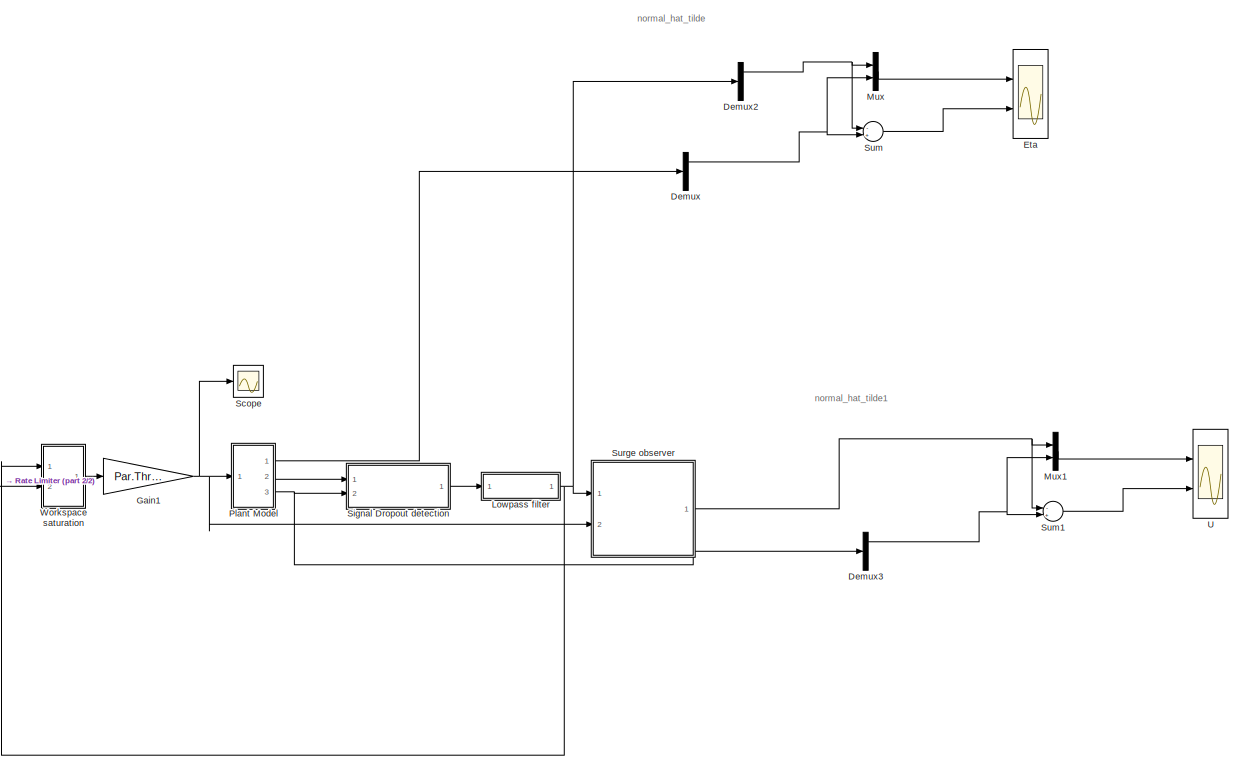
[diagram: root canvas - part 1/2, most of the canvas]
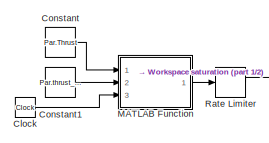
[diagram: root canvas - part 2/2, middle left region]
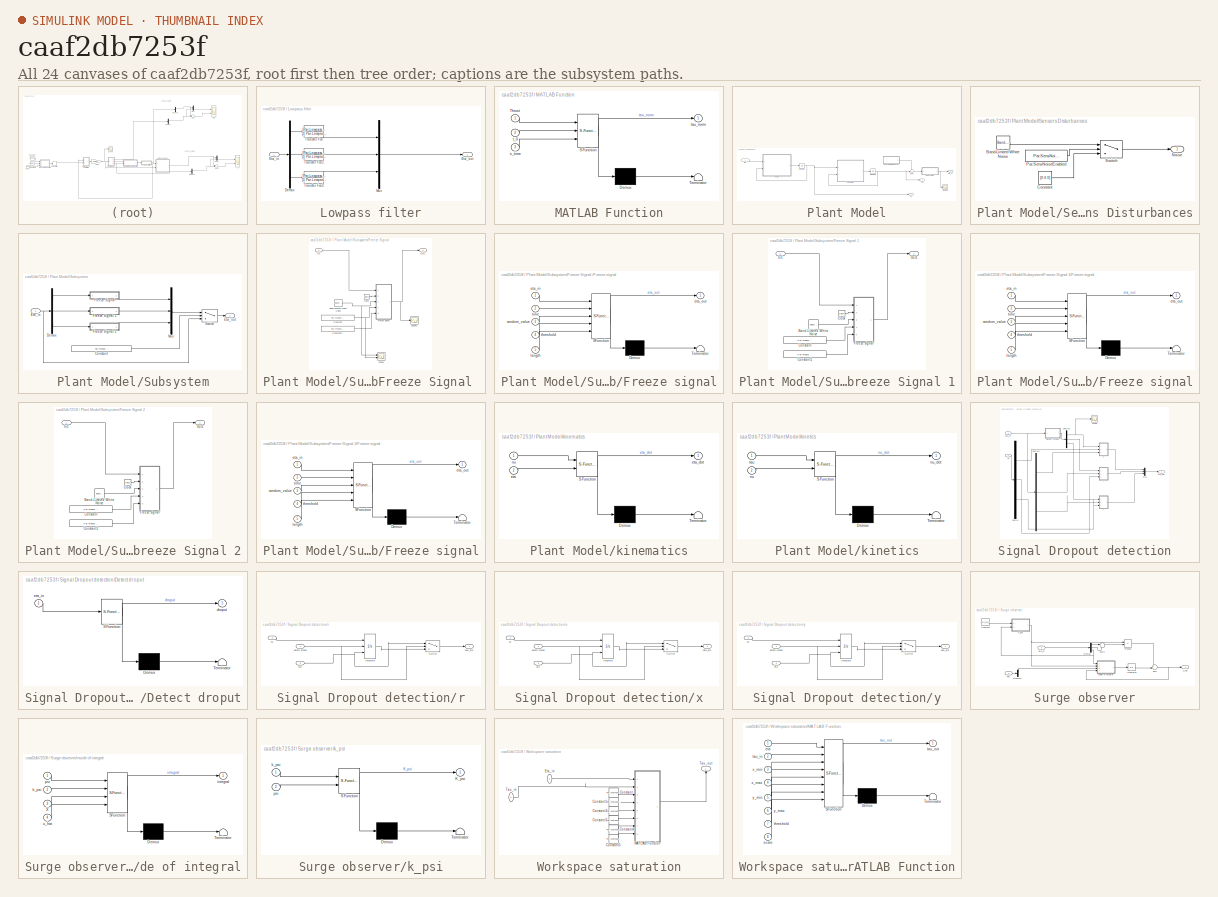
[diagram: thumbnail index - all 24 canvases of the model, root first then tree order]
MODEL slx_caaf2db7253f
KIND model
CONFIG AbsTol = auto
CONFIG EnableMultiTasking = off
CONFIG FixedStep = Par.Step_size
CONFIG MaxStep = auto
CONFIG MinStep = auto
CONFIG RelTol = 1e-3
CONFIG SampleTimeConstraint = Unconstrained
CONFIG Solver = VariableStepAuto
CONFIG SolverName = VariableStepAuto
CONFIG StartTime = 0.0
CONFIG StopTime = 40
BLOCK [Clock] Clock
BLOCK [Constant] Constant
  Value = Par.Thrust
  VectorParams1D = off
BLOCK [Constant] Constant1
  Value = Par.thrust_time
BLOCK [Demux] Demux
  DisplayOption = bar
  Outputs = 3
  Ports = [1, 3]
BLOCK [Demux] Demux2
  DisplayOption = bar
  Outputs = 3
  Ports = [1, 3]
BLOCK [Demux] Demux3
  DisplayOption = bar
  Outputs = 3
  Ports = [1, 3]
BLOCK [Scope] Eta
  NumInputPorts = 2
  Ports = [2]
  ScopeSpecificationString = Simulink.scopes.TimeScopeBlockCfg('CurrentConfiguration', extmgr.ConfigurationSet(extmgr.Configuration('Core','General UI',true),extmgr.Configuration('Core','Source UI',true),extmgr.Configuration('Sources','WiredSimulink',true,'DataLoggingVariableName','ScopeData1'),extmgr.Configuration('Visuals','Time Domain',true,'SerializedDisplays',{struct('MinYLimReal','-0.19855','MaxYLimReal','12.70645','YLa...<+2064ch>
BLOCK [Gain] Gain1
  Gain = Par.Thrust_lim
  OutDataTypeStr = Inherit: Inherit via internal rule
  ParamDataTypeStr = Inherit: Inherit via internal rule
  SaturateOnIntegerOverflow = off
BLOCK [SubSystem] Lowpass filter
  Ports = [1, 1]
  RequestExecContextInheritance = off
  Variant = off
BLOCK [Demux] Lowpass filter/Demux
  DisplayOption = bar
  Outputs = 3
  Ports = [1, 3]
BLOCK [Inport] Lowpass filter/Eta_in
  IconDisplay = Port number
BLOCK [Outport] Lowpass filter/Eta_out
  IconDisplay = Port number
BLOCK [Mux] Lowpass filter/Mux
  DisplayOption = bar
  Inputs = 3
  Ports = [3, 1]
BLOCK [TransferFcn] Lowpass filter/Transfer Fcn
  Denominator = [1 Par.Lowpass.omega.c_u Par.Lowpass.omega.c_u^2]
  Numerator = [Par.Lowpass.omega.c_u^2]
BLOCK [TransferFcn] Lowpass filter/Transfer Fcn1
  Denominator = [1 Par.Lowpass.omega.c_v]
  Numerator = [Par.Lowpass.omega.c_v]
BLOCK [TransferFcn] Lowpass filter/Transfer Fcn2
  Denominator = [1 Par.Lowpass.omega.c_psi]
  Numerator = [Par.Lowpass.omega.c_psi]
BLOCK [SubSystem] MATLAB Function
  ErrorFcn = Stateflow.Translate.translate
  PermitHierarchicalResolution = ExplicitOnly
  Ports = [3, 1]
  RequestExecContextInheritance = off
  SFBlockType = MATLAB Function
  TreatAsAtomicUnit = on
  Variant = off
BLOCK [Demux] MATLAB Function/ Demux 
  Outputs = 1
  Ports = [1, 1]
BLOCK [S-Function] MATLAB Function/ SFunction 
  EnableBusSupport = on
  FunctionName = sf_sfun
  PortCounts = [3 2]
  Ports = [3, 2]
  SFcnIsStateOwnerBlock = off
  SFunctionDeploymentMode = off
  Tag = Stateflow S-Function main 5
BLOCK [Terminator] MATLAB Function/ Terminator 
BLOCK [Inport] MATLAB Function/Thrust
  IconDisplay = Port number
BLOCK [Inport] MATLAB Function/s_time
  IconDisplay = Port number
  Port = 3
BLOCK [Inport] MATLAB Function/t_0
  IconDisplay = Port number
  Port = 2
BLOCK [Outport] MATLAB Function/tau_norm
  IconDisplay = Port number
BLOCK [Mux] Mux
  DisplayOption = bar
  Inputs = 2
  Ports = [2, 1]
BLOCK [Mux] Mux1
  DisplayOption = bar
  Inputs = 2
  Ports = [2, 1]
BLOCK [SubSystem] Plant Model
  Ports = [1, 3]
  RequestExecContextInheritance = off
  Variant = off
BLOCK [Integrator] Plant Model/Integrator
  InitialCondition = nu_0
  Ports = [1, 1]
BLOCK [Integrator] Plant Model/Integrator1
  InitialCondition = eta_0
  Ports = [1, 1]
BLOCK [Scope] Plant Model/Scope
  NumInputPorts = 1
  Ports = [1]
  ScopeSpecificationString = Simulink.scopes.TimeScopeBlockCfg('CurrentConfiguration', extmgr.ConfigurationSet(extmgr.Configuration('Core','General UI',true),extmgr.Configuration('Core','Source UI',true),extmgr.Configuration('Sources','WiredSimulink',true,'DataLoggingVariableName','ScopeData1'),extmgr.Configuration('Visuals','Time Domain',true,'SerializedDisplays',{struct('MinYLimReal','-0.68357','MaxYLimReal','2.49044','YLab...<+1396ch>
BLOCK [SubSystem] Plant Model/Sensors Disturbances
  Ports = [0, 1]
  RequestExecContextInheritance = off
  Variant = off
BLOCK [Reference] Plant Model/Sensors Disturbances/Band-Limited White Noise  REF=simulink/Sources/Band-Limited
White Noise
  Ports = [0, 1]
  SourceBlock = simulink/Sources/Band-Limited\nWhite Noise
  SourceType = Band-Limited White Noise.
BLOCK [Constant] Plant Model/Sensors Disturbances/Constant
  Value = [0 0 0]
BLOCK [Outport] Plant Model/Sensors Disturbances/Noise
  IconDisplay = Port number
BLOCK [Constant] Plant Model/Sensors Disturbances/Par.SensNoiseEnabled
  Value = Par.SensNoiseEnabled
BLOCK [Switch] Plant Model/Sensors Disturbances/Switch
  Criteria = u2 > Threshold
  InputSameDT = off
  SaturateOnIntegerOverflow = off
BLOCK [SubSystem] Plant Model/Subsystem
  Ports = [1, 1]
  RequestExecContextInheritance = off
  Variant = off
BLOCK [Constant] Plant Model/Subsystem/Constant
  Value = Par.Freeze.Enable
BLOCK [Demux] Plant Model/Subsystem/Demux
  DisplayOption = bar
  Outputs = 3
  Ports = [1, 3]
BLOCK [Inport] Plant Model/Subsystem/Eta_in
  IconDisplay = Port number
BLOCK [Outport] Plant Model/Subsystem/Eta_out
  IconDisplay = Port number
BLOCK [SubSystem] Plant Model/Subsystem/Freeze Signal 
  Ports = [1, 1]
  RequestExecContextInheritance = off
  Variant = off
BLOCK [Reference] Plant Model/Subsystem/Freeze Signal /Band-Limited White Noise  REF=simulink/Sources/Band-Limited
White Noise
  Ports = [0, 1]
  SourceBlock = simulink/Sources/Band-Limited\nWhite Noise
  SourceType = Band-Limited White Noise.
BLOCK [Clock] Plant Model/Subsystem/Freeze Signal /Clock
BLOCK [Constant] Plant Model/Subsystem/Freeze Signal /Constant
  Value = Par.Freeze.threshold
BLOCK [Constant] Plant Model/Subsystem/Freeze Signal /Constant1
  Value = Par.Freeze.length
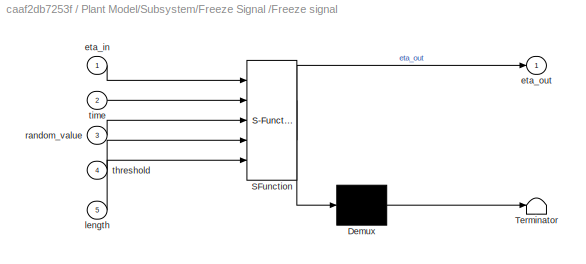
BLOCK [SubSystem] Plant Model/Subsystem/Freeze Signal /Freeze signal
  ErrorFcn = Stateflow.Translate.translate
  PermitHierarchicalResolution = ExplicitOnly
  Ports = [5, 1]
  RequestExecContextInheritance = off
  SFBlockType = MATLAB Function
  TreatAsAtomicUnit = on
  Variant = off
BLOCK [Demux] Plant Model/Subsystem/Freeze Signal /Freeze signal/ Demux 
  Outputs = 1
  Ports = [1, 1]
BLOCK [S-Function] Plant Model/Subsystem/Freeze Signal /Freeze signal/ SFunction 
  EnableBusSupport = on
  FunctionName = sf_sfun
  PortCounts = [5 2]
  Ports = [5, 2]
  SFcnIsStateOwnerBlock = off
  SFunctionDeploymentMode = off
  Tag = Stateflow S-Function main 11
BLOCK [Terminator] Plant Model/Subsystem/Freeze Signal /Freeze signal/ Terminator 
BLOCK [Inport] Plant Model/Subsystem/Freeze Signal /Freeze signal/eta_in
  IconDisplay = Port number
BLOCK [Outport] Plant Model/Subsystem/Freeze Signal /Freeze signal/eta_out
  IconDisplay = Port number
BLOCK [Inport] Plant Model/Subsystem/Freeze Signal /Freeze signal/length
  IconDisplay = Port number
  Port = 5
BLOCK [Inport] Plant Model/Subsystem/Freeze Signal /Freeze signal/random_value
  IconDisplay = Port number
  Port = 3
BLOCK [Inport] Plant Model/Subsystem/Freeze Signal /Freeze signal/threshold
  IconDisplay = Port number
  Port = 4
BLOCK [Inport] Plant Model/Subsystem/Freeze Signal /Freeze signal/time
  IconDisplay = Port number
  Port = 2
BLOCK [Inport] Plant Model/Subsystem/Freeze Signal /In1
  IconDisplay = Port number
BLOCK [Outport] Plant Model/Subsystem/Freeze Signal /Out1
  IconDisplay = Port number
BLOCK [Scope] Plant Model/Subsystem/Freeze Signal /Scope
  NumInputPorts = 2
  Ports = [2]
  ScopeSpecificationString = Simulink.scopes.TimeScopeBlockCfg('CurrentConfiguration', extmgr.ConfigurationSet(extmgr.Configuration('Core','General UI',true),extmgr.Configuration('Core','Source UI',true),extmgr.Configuration('Sources','WiredSimulink',true,'DataLoggingVariableName','ScopeData3'),extmgr.Configuration('Visuals','Time Domain',true,'SerializedDisplays',{struct('MinYLimReal','-47.59874','MaxYLimReal','43.06653','YL...<+1426ch>
BLOCK [Scope] Plant Model/Subsystem/Freeze Signal /Scope1
  NumInputPorts = 1
  Ports = [1]
  ScopeSpecificationString = Simulink.scopes.TimeScopeBlockCfg('CurrentConfiguration', extmgr.ConfigurationSet(extmgr.Configuration('Core','General UI',true),extmgr.Configuration('Core','Source UI',true),extmgr.Configuration('Sources','WiredSimulink',true,'DataLoggingVariableName','ScopeData4'),extmgr.Configuration('Visuals','Time Domain',true,'SerializedDisplays',{struct('MinYLimReal','-9.72775','MaxYLimReal','22.03037','YLa...<+1405ch>
BLOCK [SubSystem] Plant Model/Subsystem/Freeze Signal 1
  Ports = [1, 1]
  RequestExecContextInheritance = off
  Variant = off
BLOCK [Reference] Plant Model/Subsystem/Freeze Signal 1/Band-Limited White Noise  REF=simulink/Sources/Band-Limited
White Noise
  Ports = [0, 1]
  SourceBlock = simulink/Sources/Band-Limited\nWhite Noise
  SourceType = Band-Limited White Noise.
BLOCK [Clock] Plant Model/Subsystem/Freeze Signal 1/Clock
BLOCK [Constant] Plant Model/Subsystem/Freeze Signal 1/Constant
  Value = Par.Freeze.threshold
BLOCK [Constant] Plant Model/Subsystem/Freeze Signal 1/Constant1
  Value = Par.Freeze.length
BLOCK [SubSystem] Plant Model/Subsystem/Freeze Signal 1/Freeze signal
  ErrorFcn = Stateflow.Translate.translate
  PermitHierarchicalResolution = ExplicitOnly
  Ports = [5, 1]
  RequestExecContextInheritance = off
  SFBlockType = MATLAB Function
  TreatAsAtomicUnit = on
  Variant = off
BLOCK [Demux] Plant Model/Subsystem/Freeze Signal 1/Freeze signal/ Demux 
  Outputs = 1
  Ports = [1, 1]
BLOCK [S-Function] Plant Model/Subsystem/Freeze Signal 1/Freeze signal/ SFunction 
  EnableBusSupport = on
  FunctionName = sf_sfun
  PortCounts = [5 2]
  Ports = [5, 2]
  SFcnIsStateOwnerBlock = off
  SFunctionDeploymentMode = off
  Tag = Stateflow S-Function main 12
BLOCK [Terminator] Plant Model/Subsystem/Freeze Signal 1/Freeze signal/ Terminator 
BLOCK [Inport] Plant Model/Subsystem/Freeze Signal 1/Freeze signal/eta_in
  IconDisplay = Port number
BLOCK [Outport] Plant Model/Subsystem/Freeze Signal 1/Freeze signal/eta_out
  IconDisplay = Port number
BLOCK [Inport] Plant Model/Subsystem/Freeze Signal 1/Freeze signal/length
  IconDisplay = Port number
  Port = 5
BLOCK [Inport] Plant Model/Subsystem/Freeze Signal 1/Freeze signal/random_value
  IconDisplay = Port number
  Port = 3
BLOCK [Inport] Plant Model/Subsystem/Freeze Signal 1/Freeze signal/threshold
  IconDisplay = Port number
  Port = 4
BLOCK [Inport] Plant Model/Subsystem/Freeze Signal 1/Freeze signal/time
  IconDisplay = Port number
  Port = 2
BLOCK [Inport] Plant Model/Subsystem/Freeze Signal 1/In1
  IconDisplay = Port number
BLOCK [Outport] Plant Model/Subsystem/Freeze Signal 1/Out1
  IconDisplay = Port number
BLOCK [SubSystem] Plant Model/Subsystem/Freeze Signal 2
  Ports = [1, 1]
  RequestExecContextInheritance = off
  Variant = off
BLOCK [Reference] Plant Model/Subsystem/Freeze Signal 2/Band-Limited White Noise  REF=simulink/Sources/Band-Limited
White Noise
  Ports = [0, 1]
  SourceBlock = simulink/Sources/Band-Limited\nWhite Noise
  SourceType = Band-Limited White Noise.
BLOCK [Clock] Plant Model/Subsystem/Freeze Signal 2/Clock
BLOCK [Constant] Plant Model/Subsystem/Freeze Signal 2/Constant
  Value = Par.Freeze.threshold
BLOCK [Constant] Plant Model/Subsystem/Freeze Signal 2/Constant1
  Value = Par.Freeze.length
BLOCK [SubSystem] Plant Model/Subsystem/Freeze Signal 2/Freeze signal
  ErrorFcn = Stateflow.Translate.translate
  PermitHierarchicalResolution = ExplicitOnly
  Ports = [5, 1]
  RequestExecContextInheritance = off
  SFBlockType = MATLAB Function
  TreatAsAtomicUnit = on
  Variant = off
BLOCK [Demux] Plant Model/Subsystem/Freeze Signal 2/Freeze signal/ Demux 
  Outputs = 1
  Ports = [1, 1]
BLOCK [S-Function] Plant Model/Subsystem/Freeze Signal 2/Freeze signal/ SFunction 
  EnableBusSupport = on
  FunctionName = sf_sfun
  PortCounts = [5 2]
  Ports = [5, 2]
  SFcnIsStateOwnerBlock = off
  SFunctionDeploymentMode = off
  Tag = Stateflow S-Function main 13
BLOCK [Terminator] Plant Model/Subsystem/Freeze Signal 2/Freeze signal/ Terminator 
BLOCK [Inport] Plant Model/Subsystem/Freeze Signal 2/Freeze signal/eta_in
  IconDisplay = Port number
BLOCK [Outport] Plant Model/Subsystem/Freeze Signal 2/Freeze signal/eta_out
  IconDisplay = Port number
BLOCK [Inport] Plant Model/Subsystem/Freeze Signal 2/Freeze signal/length
  IconDisplay = Port number
  Port = 5
BLOCK [Inport] Plant Model/Subsystem/Freeze Signal 2/Freeze signal/random_value
  IconDisplay = Port number
  Port = 3
BLOCK [Inport] Plant Model/Subsystem/Freeze Signal 2/Freeze signal/threshold
  IconDisplay = Port number
  Port = 4
BLOCK [Inport] Plant Model/Subsystem/Freeze Signal 2/Freeze signal/time
  IconDisplay = Port number
  Port = 2
BLOCK [Inport] Plant Model/Subsystem/Freeze Signal 2/In1
  IconDisplay = Port number
BLOCK [Outport] Plant Model/Subsystem/Freeze Signal 2/Out1
  IconDisplay = Port number
BLOCK [Mux] Plant Model/Subsystem/Mux
  DisplayOption = bar
  Inputs = 3
  Ports = [3, 1]
BLOCK [Switch] Plant Model/Subsystem/Switch
  Criteria = u2 > Threshold
  InputSameDT = off
  SaturateOnIntegerOverflow = off
BLOCK [Sum] Plant Model/Sum
  IconShape = round
  InputSameDT = off
  Inputs = ++|
  OutDataTypeStr = Inherit: Inherit via internal rule
  Ports = [2, 1]
  SaturateOnIntegerOverflow = off
BLOCK [Outport] Plant Model/eta
  IconDisplay = Port number
BLOCK [Outport] Plant Model/eta_m
  IconDisplay = Port number
  Port = 2
BLOCK [SubSystem] Plant Model/kinematics
  ErrorFcn = Stateflow.Translate.translate
  PermitHierarchicalResolution = ExplicitOnly
  Ports = [2, 1]
  RequestExecContextInheritance = off
  SFBlockType = MATLAB Function
  TreatAsAtomicUnit = on
  Variant = off
BLOCK [Demux] Plant Model/kinematics/ Demux 
  Outputs = 1
  Ports = [1, 1]
BLOCK [S-Function] Plant Model/kinematics/ SFunction 
  EnableBusSupport = on
  FunctionName = sf_sfun
  PortCounts = [2 2]
  Ports = [2, 2]
  SFcnIsStateOwnerBlock = off
  SFunctionDeploymentMode = off
  Tag = Stateflow S-Function main 1
BLOCK [Terminator] Plant Model/kinematics/ Terminator 
BLOCK [Inport] Plant Model/kinematics/eta
  IconDisplay = Port number
  Port = 2
BLOCK [Outport] Plant Model/kinematics/eta_dot
  IconDisplay = Port number
BLOCK [Inport] Plant Model/kinematics/nu
  IconDisplay = Port number
BLOCK [SubSystem] Plant Model/kinetics
  ErrorFcn = Stateflow.Translate.translate
  PermitHierarchicalResolution = ExplicitOnly
  Ports = [2, 1]
  RequestExecContextInheritance = off
  SFBlockType = MATLAB Function
  TreatAsAtomicUnit = on
  Variant = off
BLOCK [Demux] Plant Model/kinetics/ Demux 
  Outputs = 1
  Ports = [1, 1]
BLOCK [S-Function] Plant Model/kinetics/ SFunction 
  EnableBusSupport = on
  FunctionName = sf_sfun
  PortCounts = [2 2]
  Ports = [2, 2]
  SFcnIsStateOwnerBlock = off
  SFunctionDeploymentMode = off
  Tag = Stateflow S-Function main 2
BLOCK [Terminator] Plant Model/kinetics/ Terminator 
BLOCK [Inport] Plant Model/kinetics/nu
  IconDisplay = Port number
  Port = 2
BLOCK [Outport] Plant Model/kinetics/nu_dot
  IconDisplay = Port number
BLOCK [Inport] Plant Model/kinetics/tau
  IconDisplay = Port number
BLOCK [Outport] Plant Model/nu
  IconDisplay = Port number
  Port = 3
BLOCK [Inport] Plant Model/tau
  IconDisplay = Port number
BLOCK [RateLimiter] Rate Limiter
  FallingSlewLimit = -5
  RisingSlewLimit = 5
  SampleTimeMode = inherited
BLOCK [Scope] Scope
  NumInputPorts = 1
  Ports = [1]
  ScopeSpecificationString = Simulink.scopes.TimeScopeBlockCfg('CurrentConfiguration', extmgr.ConfigurationSet(extmgr.Configuration('Core','General UI',true),extmgr.Configuration('Core','Source UI',true),extmgr.Configuration('Sources','WiredSimulink',true,'DataLoggingVariableName','ScopeData1'),extmgr.Configuration('Visuals','Time Domain',true,'SerializedDisplays',{struct('MinYLimReal','-1.00000','MaxYLimReal','1.00000','YLab...<+1439ch>
BLOCK [SubSystem] Signal Dropout detection
  Ports = [2, 1]
  RequestExecContextInheritance = off
  Variant = off
BLOCK [Demux] Signal Dropout detection/Demux
  DisplayOption = bar
  Outputs = 3
  Ports = [1, 3]
BLOCK [Demux] Signal Dropout detection/Demux1
  DisplayOption = bar
  Outputs = 3
  Ports = [1, 3]
BLOCK [Demux] Signal Dropout detection/Demux2
  DisplayOption = bar
  Outputs = 3
  Ports = [1, 3]
BLOCK [SubSystem] Signal Dropout detection/Detect droput
  ErrorFcn = Stateflow.Translate.translate
  PermitHierarchicalResolution = ExplicitOnly
  Ports = [1, 1]
  RequestExecContextInheritance = off
  SFBlockType = MATLAB Function
  TreatAsAtomicUnit = on
  Variant = off
BLOCK [Demux] Signal Dropout detection/Detect droput/ Demux 
  Outputs = 1
  Ports = [1, 1]
BLOCK [S-Function] Signal Dropout detection/Detect droput/ SFunction 
  EnableBusSupport = on
  FunctionName = sf_sfun
  PortCounts = [1 2]
  Ports = [1, 2]
  SFcnIsStateOwnerBlock = off
  SFunctionDeploymentMode = off
  Tag = Stateflow S-Function main 10
BLOCK [Terminator] Signal Dropout detection/Detect droput/ Terminator 
BLOCK [Outport] Signal Dropout detection/Detect droput/droput
  IconDisplay = Port number
BLOCK [Inport] Signal Dropout detection/Detect droput/eta_in
  IconDisplay = Port number
BLOCK [Inport] Signal Dropout detection/Eta_m
  IconDisplay = Port number
BLOCK [Outport] Signal Dropout detection/Eta_out
  IconDisplay = Port number
BLOCK [Mux] Signal Dropout detection/Mux
  DisplayOption = bar
  Inputs = 3
  Ports = [3, 1]
BLOCK [Inport] Signal Dropout detection/Nu
  IconDisplay = Port number
  Port = 2
BLOCK [Scope] Signal Dropout detection/Scope
  NumInputPorts = 1
  Ports = [1]
  ScopeSpecificationString = Simulink.scopes.TimeScopeBlockCfg('CurrentConfiguration', extmgr.ConfigurationSet(extmgr.Configuration('Core','General UI',true),extmgr.Configuration('Core','Source UI',true),extmgr.Configuration('Sources','WiredSimulink',true,'DataLoggingVariableName','ScopeData2'),extmgr.Configuration('Visuals','Time Domain',true,'SerializedDisplays',{struct('MinYLimReal','-0.125','MaxYLimReal','1.125','YLabelRe...<+1355ch>
BLOCK [SubSystem] Signal Dropout detection/r
  Ports = [3, 1]
  RequestExecContextInheritance = off
  Variant = off
BLOCK [Integrator] Signal Dropout detection/r/Integrator
  ExternalReset = rising
  InitialConditionSource = external
  Ports = [3, 1]
BLOCK [Switch] Signal Dropout detection/r/Switch
  Criteria = u2 ~= 0
  InputSameDT = off
  SaturateOnIntegerOverflow = off
BLOCK [Inport] Signal Dropout detection/r/detect droput
  IconDisplay = Port number
BLOCK [Inport] Signal Dropout detection/r/eta
  IconDisplay = Port number
  Port = 3
BLOCK [Outport] Signal Dropout detection/r/new_eta
  IconDisplay = Port number
BLOCK [Inport] Signal Dropout detection/r/nu
  IconDisplay = Port number
  Port = 2
BLOCK [SubSystem] Signal Dropout detection/x
  Ports = [3, 1]
  RequestExecContextInheritance = off
  Variant = off
BLOCK [Integrator] Signal Dropout detection/x/Integrator
  ExternalReset = rising
  InitialConditionSource = external
  Ports = [3, 1]
BLOCK [Switch] Signal Dropout detection/x/Switch
  Criteria = u2 ~= 0
  InputSameDT = off
  SaturateOnIntegerOverflow = off
BLOCK [Inport] Signal Dropout detection/x/detect droput
  IconDisplay = Port number
BLOCK [Inport] Signal Dropout detection/x/eta
  IconDisplay = Port number
  Port = 3
BLOCK [Outport] Signal Dropout detection/x/new_eta
  IconDisplay = Port number
BLOCK [Inport] Signal Dropout detection/x/nu
  IconDisplay = Port number
  Port = 2
BLOCK [SubSystem] Signal Dropout detection/y
  Ports = [3, 1]
  RequestExecContextInheritance = off
  Variant = off
BLOCK [Integrator] Signal Dropout detection/y/Integrator
  ExternalReset = rising
  InitialConditionSource = external
  Ports = [3, 1]
BLOCK [Switch] Signal Dropout detection/y/Switch
  Criteria = u2 ~= 0
  InputSameDT = off
  SaturateOnIntegerOverflow = off
BLOCK [Inport] Signal Dropout detection/y/detect droput
  IconDisplay = Port number
BLOCK [Inport] Signal Dropout detection/y/eta
  IconDisplay = Port number
  Port = 3
BLOCK [Outport] Signal Dropout detection/y/new_eta
  IconDisplay = Port number
BLOCK [Inport] Signal Dropout detection/y/nu
  IconDisplay = Port number
  Port = 2
BLOCK [Sum] Sum
  IconShape = round
  InputSameDT = off
  Inputs = -+|
  OutDataTypeStr = Inherit: Inherit via internal rule
  Ports = [2, 1]
  SaturateOnIntegerOverflow = off
BLOCK [Sum] Sum1
  IconShape = round
  InputSameDT = off
  Inputs = -+|
  OutDataTypeStr = Inherit: Inherit via internal rule
  Ports = [2, 1]
  SaturateOnIntegerOverflow = off
BLOCK [SubSystem] Surge observer
  Ports = [2, 1]
  RequestExecContextInheritance = off
  Variant = off
BLOCK [Constant] Surge observer/Constant
  Value = Par.K_psi_init
BLOCK [Demux] Surge observer/Demux
  DisplayOption = bar
  Outputs = 3
  Ports = [1, 3]
BLOCK [Demux] Surge observer/Demux1
  DisplayOption = bar
  Outputs = 3
  Ports = [1, 3]
BLOCK [Integrator] Surge observer/Integrator
  Ports = [1, 1]
BLOCK [Product] Surge observer/Product
  InputSameDT = off
  OutDataTypeStr = Inherit: Inherit via internal rule
  Ports = [2, 1]
  RndMeth = Floor
  SaturateOnIntegerOverflow = off
BLOCK [Sum] Surge observer/Sum
  IconShape = round
  InputSameDT = off
  Inputs = ++|
  OutDataTypeStr = Inherit: Inherit via internal rule
  Ports = [2, 1]
  SaturateOnIntegerOverflow = off
BLOCK [Sum] Surge observer/Sum1
  IconShape = round
  InputSameDT = off
  Inputs = |++
  OutDataTypeStr = Inherit: Inherit via internal rule
  Ports = [2, 1]
  SaturateOnIntegerOverflow = off
BLOCK [Inport] Surge observer/Tau
  IconDisplay = Port number
  Port = 2
BLOCK [Inport] Surge observer/eta_m
  IconDisplay = Port number
BLOCK [SubSystem] Surge observer/inside of integral
  ErrorFcn = Stateflow.Translate.translate
  PermitHierarchicalResolution = ExplicitOnly
  Ports = [4, 1]
  RequestExecContextInheritance = off
  SFBlockType = MATLAB Function
  TreatAsAtomicUnit = on
  Variant = off
BLOCK [Demux] Surge observer/inside of integral/ Demux 
  Outputs = 1
  Ports = [1, 1]
BLOCK [S-Function] Surge observer/inside of integral/ SFunction 
  EnableBusSupport = on
  FunctionName = sf_sfun
  PortCounts = [4 2]
  Ports = [4, 2]
  SFcnIsStateOwnerBlock = off
  SFunctionDeploymentMode = off
  Tag = Stateflow S-Function main 6
BLOCK [Terminator] Surge observer/inside of integral/ Terminator 
BLOCK [Inport] Surge observer/inside of integral/X
  IconDisplay = Port number
  Port = 3
BLOCK [Outport] Surge observer/inside of integral/integral
  IconDisplay = Port number
BLOCK [Inport] Surge observer/inside of integral/k_psi
  IconDisplay = Port number
  Port = 2
BLOCK [Inport] Surge observer/inside of integral/psi
  IconDisplay = Port number
BLOCK [Inport] Surge observer/inside of integral/u_hat
  IconDisplay = Port number
  Port = 4
BLOCK [SubSystem] Surge observer/k_psi
  ErrorFcn = Stateflow.Translate.translate
  PermitHierarchicalResolution = ExplicitOnly
  Ports = [2, 1]
  RequestExecContextInheritance = off
  SFBlockType = MATLAB Function
  TreatAsAtomicUnit = on
  Variant = off
BLOCK [Demux] Surge observer/k_psi/ Demux 
  Outputs = 1
  Ports = [1, 1]
BLOCK [S-Function] Surge observer/k_psi/ SFunction 
  EnableBusSupport = on
  FunctionName = sf_sfun
  PortCounts = [2 2]
  Ports = [2, 2]
  SFcnIsStateOwnerBlock = off
  SFunctionDeploymentMode = off
  Tag = Stateflow S-Function main 7
BLOCK [Terminator] Surge observer/k_psi/ Terminator 
BLOCK [Outport] Surge observer/k_psi/K_psi
  IconDisplay = Port number
BLOCK [Inport] Surge observer/k_psi/k_psi
  IconDisplay = Port number
BLOCK [Inport] Surge observer/k_psi/psi
  IconDisplay = Port number
  Port = 2
BLOCK [Outport] Surge observer/u_hat
  IconDisplay = Port number
BLOCK [Scope] U
  NumInputPorts = 2
  Ports = [2]
  ScopeSpecificationString = Simulink.scopes.TimeScopeBlockCfg('CurrentConfiguration', extmgr.ConfigurationSet(extmgr.Configuration('Core','General UI',true),extmgr.Configuration('Core','Source UI',true),extmgr.Configuration('Sources','WiredSimulink',true,'DataLoggingVariableName','ScopeData1'),extmgr.Configuration('Visuals','Time Domain',true,'SerializedDisplays',{struct('MinYLimReal','-1.2468','MaxYLimReal','1.33727','YLabe...<+2049ch>
BLOCK [SubSystem] Workspace saturation
  Ports = [2, 1]
  RequestExecContextInheritance = off
  Variant = off
BLOCK [Constant] Workspace saturation/Constant
  Value = Par.Workspace.x_min
BLOCK [Constant] Workspace saturation/Constant1
  Value = Par.Workspace.x_max
BLOCK [Constant] Workspace saturation/Constant2
  Value = Par.Workspace.y_min
BLOCK [Constant] Workspace saturation/Constant3
  Value = Par.Workspace.y_max
BLOCK [Constant] Workspace saturation/Constant4
  Value = Par.Workspace.threshold
BLOCK [Constant] Workspace saturation/Constant5
  Value = Par.Workspace.threshold
BLOCK [Inport] Workspace saturation/Eta_in
  IconDisplay = Port number
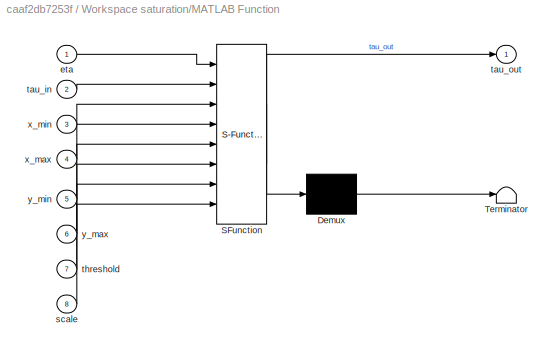
BLOCK [SubSystem] Workspace saturation/MATLAB Function
  ErrorFcn = Stateflow.Translate.translate
  PermitHierarchicalResolution = ExplicitOnly
  Ports = [8, 1]
  RequestExecContextInheritance = off
  SFBlockType = MATLAB Function
  TreatAsAtomicUnit = on
  Variant = off
BLOCK [Demux] Workspace saturation/MATLAB Function/ Demux 
  Outputs = 1
  Ports = [1, 1]
BLOCK [S-Function] Workspace saturation/MATLAB Function/ SFunction 
  EnableBusSupport = on
  FunctionName = sf_sfun
  PortCounts = [8 2]
  Ports = [8, 2]
  SFcnIsStateOwnerBlock = off
  SFunctionDeploymentMode = off
  Tag = Stateflow S-Function main 4
BLOCK [Terminator] Workspace saturation/MATLAB Function/ Terminator 
BLOCK [Inport] Workspace saturation/MATLAB Function/eta
  IconDisplay = Port number
BLOCK [Inport] Workspace saturation/MATLAB Function/scale
  IconDisplay = Port number
  Port = 8
BLOCK [Inport] Workspace saturation/MATLAB Function/tau_in
  IconDisplay = Port number
  Port = 2
BLOCK [Outport] Workspace saturation/MATLAB Function/tau_out
  IconDisplay = Port number
BLOCK [Inport] Workspace saturation/MATLAB Function/threshold
  IconDisplay = Port number
  Port = 7
BLOCK [Inport] Workspace saturation/MATLAB Function/x_max
  IconDisplay = Port number
  Port = 4
BLOCK [Inport] Workspace saturation/MATLAB Function/x_min
  IconDisplay = Port number
  Port = 3
BLOCK [Inport] Workspace saturation/MATLAB Function/y_max
  IconDisplay = Port number
  Port = 6
BLOCK [Inport] Workspace saturation/MATLAB Function/y_min
  IconDisplay = Port number
  Port = 5
BLOCK [Inport] Workspace saturation/Tau_in
  IconDisplay = Port number
  Port = 2
BLOCK [Outport] Workspace saturation/Tau_out
  IconDisplay = Port number
ANNOTATION (root): normal_hat_tilde
ANNOTATION (root): normal_hat_tilde1
LINE Clock:1 -> MATLAB Function:3
LINE Constant1:1 -> MATLAB Function:2
LINE Constant:1 -> MATLAB Function:1
NET Demux2:1 -> Mux:1, Sum:1
NET Demux3:1 -> Mux1:2, Sum1:2
NET Demux:1 -> Mux:2, Sum:2
NET Gain1:1 -> Plant Model:1, Scope:1, Surge observer:2
LINE Lowpass filter/Demux:1 -> Lowpass filter/Transfer Fcn:1
LINE Lowpass filter/Demux:2 -> Lowpass filter/Transfer Fcn1:1
LINE Lowpass filter/Demux:3 -> Lowpass filter/Transfer Fcn2:1
LINE Lowpass filter/Eta_in:1 -> Lowpass filter/Demux:1
LINE Lowpass filter/Mux:1 -> Lowpass filter/Eta_out:1
LINE Lowpass filter/Transfer Fcn1:1 -> Lowpass filter/Mux:2
LINE Lowpass filter/Transfer Fcn2:1 -> Lowpass filter/Mux:3
LINE Lowpass filter/Transfer Fcn:1 -> Lowpass filter/Mux:1
NET Lowpass filter:1 -> Demux2:1, Surge observer:1, Workspace saturation:1
LINE MATLAB Function:1 -> Rate Limiter:1
LINE Mux1:1 -> U:1
LINE Mux:1 -> Eta:1
NET Plant Model/Integrator1:1 -> Plant Model/Sum:2, Plant Model/eta:1, Plant Model/kinematics:2
NET Plant Model/Integrator:1 -> Plant Model/kinematics:1, Plant Model/kinetics:2, Plant Model/nu:1
LINE Plant Model/Sensors Disturbances/Band-Limited White Noise:1 -> Plant Model/Sensors Disturbances/Switch:1
LINE Plant Model/Sensors Disturbances/Constant:1 -> Plant Model/Sensors Disturbances/Switch:3
LINE Plant Model/Sensors Disturbances/Par.SensNoiseEnabled:1 -> Plant Model/Sensors Disturbances/Switch:2
LINE Plant Model/Sensors Disturbances/Switch:1 -> Plant Model/Sensors Disturbances/Noise:1
LINE Plant Model/Sensors Disturbances:1 -> Plant Model/Sum:1
LINE Plant Model/Subsystem/Constant:1 -> Plant Model/Subsystem/Switch:2
LINE Plant Model/Subsystem/Demux:1 -> Plant Model/Subsystem/Freeze Signal :1
LINE Plant Model/Subsystem/Demux:2 -> Plant Model/Subsystem/Freeze Signal 1:1
LINE Plant Model/Subsystem/Demux:3 -> Plant Model/Subsystem/Freeze Signal 2:1
NET Plant Model/Subsystem/Eta_in:1 -> Plant Model/Subsystem/Demux:1, Plant Model/Subsystem/Switch:3
NET Plant Model/Subsystem/Freeze Signal /Band-Limited White Noise:1 -> Plant Model/Subsystem/Freeze Signal /Freeze signal:3, Plant Model/Subsystem/Freeze Signal /Scope:1
LINE Plant Model/Subsystem/Freeze Signal /Clock:1 -> Plant Model/Subsystem/Freeze Signal /Freeze signal:2
LINE Plant Model/Subsystem/Freeze Signal /Constant1:1 -> Plant Model/Subsystem/Freeze Signal /Freeze signal:5
NET Plant Model/Subsystem/Freeze Signal /Constant:1 -> Plant Model/Subsystem/Freeze Signal /Freeze signal:4, Plant Model/Subsystem/Freeze Signal /Scope:2
NET Plant Model/Subsystem/Freeze Signal /Freeze signal:1 -> Plant Model/Subsystem/Freeze Signal /Out1:1, Plant Model/Subsystem/Freeze Signal /Scope1:1
LINE Plant Model/Subsystem/Freeze Signal /In1:1 -> Plant Model/Subsystem/Freeze Signal /Freeze signal:1
LINE Plant Model/Subsystem/Freeze Signal 1/Band-Limited White Noise:1 -> Plant Model/Subsystem/Freeze Signal 1/Freeze signal:3
LINE Plant Model/Subsystem/Freeze Signal 1/Clock:1 -> Plant Model/Subsystem/Freeze Signal 1/Freeze signal:2
LINE Plant Model/Subsystem/Freeze Signal 1/Constant1:1 -> Plant Model/Subsystem/Freeze Signal 1/Freeze signal:5
LINE Plant Model/Subsystem/Freeze Signal 1/Constant:1 -> Plant Model/Subsystem/Freeze Signal 1/Freeze signal:4
LINE Plant Model/Subsystem/Freeze Signal 1/Freeze signal:1 -> Plant Model/Subsystem/Freeze Signal 1/Out1:1
LINE Plant Model/Subsystem/Freeze Signal 1/In1:1 -> Plant Model/Subsystem/Freeze Signal 1/Freeze signal:1
LINE Plant Model/Subsystem/Freeze Signal 1:1 -> Plant Model/Subsystem/Mux:2
LINE Plant Model/Subsystem/Freeze Signal 2/Band-Limited White Noise:1 -> Plant Model/Subsystem/Freeze Signal 2/Freeze signal:3
LINE Plant Model/Subsystem/Freeze Signal 2/Clock:1 -> Plant Model/Subsystem/Freeze Signal 2/Freeze signal:2
LINE Plant Model/Subsystem/Freeze Signal 2/Constant1:1 -> Plant Model/Subsystem/Freeze Signal 2/Freeze signal:5
LINE Plant Model/Subsystem/Freeze Signal 2/Constant:1 -> Plant Model/Subsystem/Freeze Signal 2/Freeze signal:4
LINE Plant Model/Subsystem/Freeze Signal 2/Freeze signal:1 -> Plant Model/Subsystem/Freeze Signal 2/Out1:1
LINE Plant Model/Subsystem/Freeze Signal 2/In1:1 -> Plant Model/Subsystem/Freeze Signal 2/Freeze signal:1
LINE Plant Model/Subsystem/Freeze Signal 2:1 -> Plant Model/Subsystem/Mux:3
LINE Plant Model/Subsystem/Freeze Signal :1 -> Plant Model/Subsystem/Mux:1
LINE Plant Model/Subsystem/Mux:1 -> Plant Model/Subsystem/Switch:1
LINE Plant Model/Subsystem/Switch:1 -> Plant Model/Subsystem/Eta_out:1
NET Plant Model/Subsystem:1 -> Plant Model/Scope:1, Plant Model/eta_m:1
LINE Plant Model/Sum:1 -> Plant Model/Subsystem:1
LINE Plant Model/kinematics:1 -> Plant Model/Integrator1:1
LINE Plant Model/kinetics:1 -> Plant Model/Integrator:1
LINE Plant Model/tau:1 -> Plant Model/kinetics:1
LINE Plant Model:1 -> Demux:1
LINE Plant Model:2 -> Signal Dropout detection:1
NET Plant Model:3 -> Demux3:1, Signal Dropout detection:2
LINE Rate Limiter:1 -> Workspace saturation:2
LINE Signal Dropout detection/Demux1:1 -> Signal Dropout detection/x:3
LINE Signal Dropout detection/Demux1:2 -> Signal Dropout detection/y:2
LINE Signal Dropout detection/Demux1:3 -> Signal Dropout detection/r:2
NET Signal Dropout detection/Demux2:1 -> Signal Dropout detection/Scope:1, Signal Dropout detection/x:1
LINE Signal Dropout detection/Demux2:2 -> Signal Dropout detection/y:1
LINE Signal Dropout detection/Demux2:3 -> Signal Dropout detection/r:1
LINE Signal Dropout detection/Demux:1 -> Signal Dropout detection/x:2
LINE Signal Dropout detection/Demux:2 -> Signal Dropout detection/y:3
LINE Signal Dropout detection/Demux:3 -> Signal Dropout detection/r:3
LINE Signal Dropout detection/Detect droput:1 -> Signal Dropout detection/Demux2:1
NET Signal Dropout detection/Eta_m:1 -> Signal Dropout detection/Demux1:1, Signal Dropout detection/Detect droput:1
LINE Signal Dropout detection/Mux:1 -> Signal Dropout detection/Eta_out:1
LINE Signal Dropout detection/Nu:1 -> Signal Dropout detection/Demux:1
LINE Signal Dropout detection/r/Integrator:1 -> Signal Dropout detection/r/Switch:3
LINE Signal Dropout detection/r/Switch:1 -> Signal Dropout detection/r/new_eta:1
NET Signal Dropout detection/r/detect droput:1 -> Signal Dropout detection/r/Integrator:2, Signal Dropout detection/r/Switch:2
NET Signal Dropout detection/r/eta:1 -> Signal Dropout detection/r/Integrator:3, Signal Dropout detection/r/Switch:1
LINE Signal Dropout detection/r/nu:1 -> Signal Dropout detection/r/Integrator:1
LINE Signal Dropout detection/r:1 -> Signal Dropout detection/Mux:3
LINE Signal Dropout detection/x/Integrator:1 -> Signal Dropout detection/x/Switch:3
LINE Signal Dropout detection/x/Switch:1 -> Signal Dropout detection/x/new_eta:1
NET Signal Dropout detection/x/detect droput:1 -> Signal Dropout detection/x/Integrator:2, Signal Dropout detection/x/Switch:2
NET Signal Dropout detection/x/eta:1 -> Signal Dropout detection/x/Integrator:3, Signal Dropout detection/x/Switch:1
LINE Signal Dropout detection/x/nu:1 -> Signal Dropout detection/x/Integrator:1
LINE Signal Dropout detection/x:1 -> Signal Dropout detection/Mux:1
LINE Signal Dropout detection/y/Integrator:1 -> Signal Dropout detection/y/Switch:3
LINE Signal Dropout detection/y/Switch:1 -> Signal Dropout detection/y/new_eta:1
NET Signal Dropout detection/y/detect droput:1 -> Signal Dropout detection/y/Integrator:2, Signal Dropout detection/y/Switch:2
NET Signal Dropout detection/y/eta:1 -> Signal Dropout detection/y/Integrator:3, Signal Dropout detection/y/Switch:1
LINE Signal Dropout detection/y/nu:1 -> Signal Dropout detection/y/Integrator:1
LINE Signal Dropout detection/y:1 -> Signal Dropout detection/Mux:2
LINE Signal Dropout detection:1 -> Lowpass filter:1
LINE Sum1:1 -> U:2
LINE Sum:1 -> Eta:2
LINE Surge observer/Constant:1 -> Surge observer/k_psi:1
LINE Surge observer/Demux1:1 -> Surge observer/inside of integral:3
LINE Surge observer/Demux:1 -> Surge observer/Sum1:1
LINE Surge observer/Demux:2 -> Surge observer/Sum1:2
NET Surge observer/Demux:3 -> Surge observer/inside of integral:1, Surge observer/k_psi:2
LINE Surge observer/Integrator:1 -> Surge observer/Sum:2
LINE Surge observer/Product:1 -> Surge observer/Sum:1
LINE Surge observer/Sum1:1 -> Surge observer/Product:2
NET Surge observer/Sum:1 -> Surge observer/inside of integral:4, Surge observer/u_hat:1
LINE Surge observer/Tau:1 -> Surge observer/Demux1:1
LINE Surge observer/eta_m:1 -> Surge observer/Demux:1
LINE Surge observer/inside of integral:1 -> Surge observer/Integrator:1
NET Surge observer/k_psi:1 -> Surge observer/Product:1, Surge observer/inside of integral:2
NET Surge observer:1 -> Mux1:1, Sum1:1
LINE Workspace saturation/Constant1:1 -> Workspace saturation/MATLAB Function:4
LINE Workspace saturation/Constant2:1 -> Workspace saturation/MATLAB Function:5
LINE Workspace saturation/Constant3:1 -> Workspace saturation/MATLAB Function:6
LINE Workspace saturation/Constant4:1 -> Workspace saturation/MATLAB Function:7
LINE Workspace saturation/Constant5:1 -> Workspace saturation/MATLAB Function:8
LINE Workspace saturation/Constant:1 -> Workspace saturation/MATLAB Function:3
LINE Workspace saturation/Eta_in:1 -> Workspace saturation/MATLAB Function:1
LINE Workspace saturation/MATLAB Function:1 -> Workspace saturation/Tau_out:1
LINE Workspace saturation/Tau_in:1 -> Workspace saturation/MATLAB Function:2
LINE Workspace saturation:1 -> Gain1:1
note: NET lines group one-source signal fan-out (src -> all destinations, sorted); 1:1 wires keep LINE
CHART Plant Model/kinematics states=1 transitions=1
  STATE_LABEL 'eML_blk_kernel()'
  STATE_LABEL 'SCRIPT:\nfunction eta_dot = CSE1_eta_dot(nu,eta)\n\npsi = eta(3);\n\nJ = [cos(psi) -sin(psi) 0\n     sin(psi) cos(psi)  0\n     0        0         1];\n\neta_dot = J*nu;'
CHART Plant Model/kinetics states=1 transitions=1
  STATE_LABEL 'eML_blk_kernel()'
  STATE_LABEL 'SCRIPT:\nfunction nu_dot = CSE1_nu_dot(tau,nu)\n\nu   = nu(1);\nv   = nu(2);\nr   = nu(3);\n\ntau = [tau(1);tau(2);tau(3)];\n%% MATRICES\n\nm    = 14.79;   I_z  =  1.7600;   x_g = 0.0375;       % x_g  =  0.0460; % Table B.1\n\n\n%% Added mass\nX_ud  =     -2.0;\t\t\t\t\t\t\t\t\t\t\t% Table B.1\n\t\t\t\t\tY_vd =     -1.0;\tN_vd =    -0.0;\t\t% Table B.1 guestimate\n\t\t\t\t\tY_rd =      -0.0;\tN_rd =    -1.0;\t\t% Table B.1\n\n%% Total mass m...<+1285ch>'
CHART Workspace saturation/MATLAB Function states=1 transitions=1
  STATE_LABEL 'eML_blk_kernel()'
  STATE_LABEL 'SCRIPT:\nfunction tau_out = fcn(eta, tau_in, x_min, x_max, y_min, y_max, threshold, scale)\n%#codegen\nR = [cos(eta(3)) sin(eta(3)) 0 ; -sin(eta(3)) cos(eta(3)) 0; 0 0 1];\n\ntau_NED = R*tau_in;\ntau_NED_out = tau_NED;\n\n%check if x is above limits\nif (eta(1) > x_max)\n    %x is above of the limit\n    epsilon = ((eta(1) - x_max)/threshold);\n    tau_NED_out(1) = -epsilon;% + tau_NED(1)*(1-epsilon);\nend\n%ch...<+576ch>'
CHART MATLAB Function states=1 transitions=1
  STATE_LABEL 'eML_blk_kernel()'
  STATE_LABEL "SCRIPT:\nfunction tau_norm = fcn(Thrust, t_0, s_time)\n%coder.extrinsic('get_param');\ntau_norm = zeros(3,1);\npersistent i;\npersistent tau;\nif(isempty(i))\n    i = 1;\nend\nif(isempty(tau))\n    tau = [0; 0; 0];\nend\nif(s_time>t_0(i))\n    tau(1) = Thrust(i, 1);\n    tau(2) = Thrust(i, 2);\n    tau(3) = Thrust(i, 3);\n    if(i<size(Thrust, 1))\n        i = i +1;\n    end\nend\ntau_norm = tau;\nend\n"
CHART Surge observer/inside of integral states=1 transitions=1
  STATE_LABEL 'eML_blk_kernel()'
  STATE_LABEL 'SCRIPT:\nfunction integral = fcn(psi, k_psi, X, u_hat)\n%#codegen\nX_u = -.6555;\nX_uu = .3545;\nX_uuu = -3.787;\nm_11 = 16.79;\nd_11 = -X_u -X_uu*abs(u_hat) - X_uuu*u_hat^2;\nintegral = -d_11*u_hat/m_11 + X/m_11 - k_psi*(cos(psi) + sin(psi))*u_hat;\nend'
CHART Surge observer/k_psi states=1 transitions=1
  STATE_LABEL 'eML_blk_kernel()'
  STATE_LABEL 'SCRIPT:\nfunction K_psi = fcn(k_psi, psi)\n%#codegen\nK_psi = k_psi*sign(sin(psi) + cos(psi));\n% y = u;'
CHART Signal Dropout detection/Detect droput states=1 transitions=1
  STATE_LABEL 'eML_blk_kernel()'
  STATE_LABEL "SCRIPT:\nfunction droput = fcn(eta_in)\npersistent eta_old;\npersistent i;\nif isempty(eta_old)\n    eta_old = zeros(3, 5);\nend\nif isempty(i)\n    i = 1;\nend\neta_old(1:3, i) = eta_in;\ni = i+1;\nif(i==6)\n    i = 1;\nend\n\ndroput = (eta_in - sum(eta_old')'/5) == 0;\n\nend"
CHART Plant Model/Subsystem/Freeze Signal
/Freeze signal states=1 transitions=1
  STATE_LABEL 'eML_blk_kernel()'
  STATE_LABEL 'SCRIPT:\nfunction eta_out = fcn(eta_in, time, random_value, threshold, length)\npersistent eta t_1;\nif isempty(eta)\n    eta = eta_in;\n    t_1 = 0;\nend\n\nif random_value > threshold\n    t_1 = time + length*(0.5*rand+0.5);\nend\nif time>=t_1\n    eta = eta_in;\nend\n\neta_out = eta;\nend\n'  <repeated x3 — deduplicated; at blocks: Freeze Signal>
CHART Plant Model/Subsystem/Freeze Signal
1/Freeze signal states=1 transitions=1
  STATE_LABEL 'eML_blk_kernel()'
CHART Plant Model/Subsystem/Freeze Signal
2/Freeze signal states=1 transitions=1
  STATE_LABEL 'eML_blk_kernel()'
